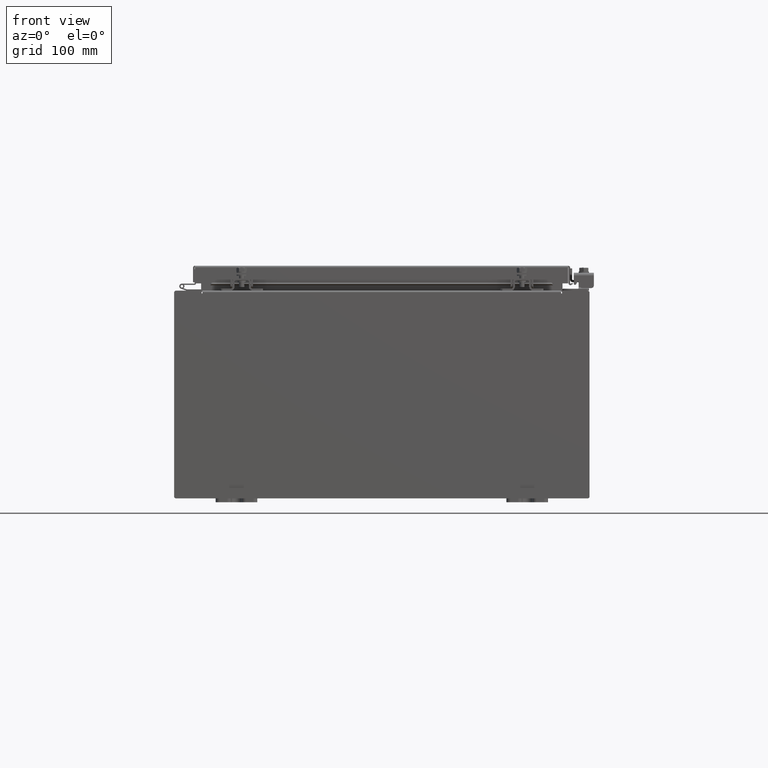
[diagram: clean part render]
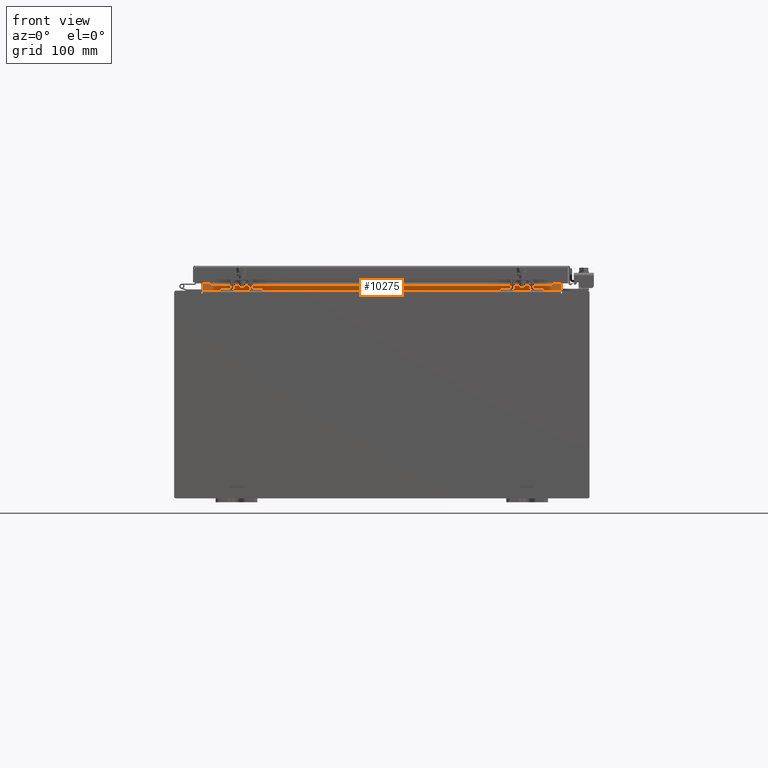
[diagram: same view with one face highlighted and labeled with its STEP entity id]
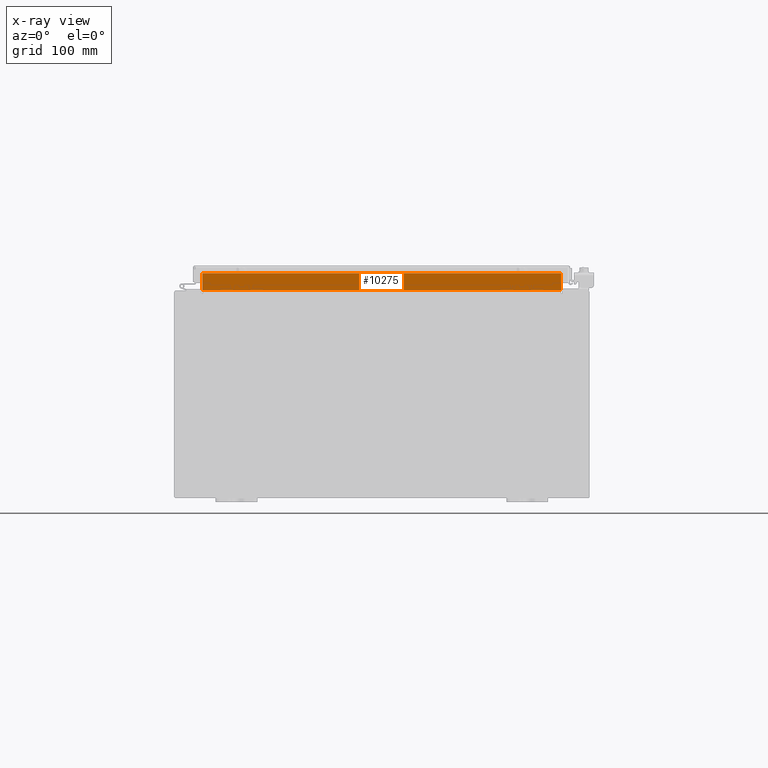
[diagram: x-ray of the same camera — body ghosted, the highlighted face saturated]
A machine part, front view. The second image highlights one B-rep face of the part: STEP entity #10275.
The next image is the same camera in x-ray: the body ghosted, the highlighted face saturated — about 0% of this face is hidden behind the body in this view.
In plain terms, the highlighted planar face has unit normal (0, -1, 0).
Its self-contained STEP definition (entity closure, byte-faithful):
#982 = CARTESIAN_POINT ( 'NONE',  ( 8.637200000000000000, -1.300299999999999800, 5.925300000000004500 ) ) ;
#1188 = VERTEX_POINT ( 'NONE', #32738 ) ;
#1402 = EDGE_CURVE ( 'NONE', #24396, #8806, #10520, .T. ) ;
#2303 = DIRECTION ( 'NONE',  ( -1.000000000000000000, -0.0000000000000000000, -0.0000000000000000000 ) ) ;
#2376 = CARTESIAN_POINT ( 'NONE',  ( 8.637200000000000000, -1.300299999999999800, 5.837600000000004600 ) ) ;
#2963 = LINE ( 'NONE', #982, #32685 ) ;
#6478 = CARTESIAN_POINT ( 'NONE',  ( -8.637200000000000000, -1.300299999999999800, 5.013000000000003500 ) ) ;
#8733 = VECTOR ( 'NONE', #2303, 39.37007874015748100 ) ;
#8806 = VERTEX_POINT ( 'NONE', #23264 ) ;
#9212 = ORIENTED_EDGE ( 'NONE', *, *, #15621, .F. ) ;
#10275 = ADVANCED_FACE ( 'NONE', ( #24716 ), #14031, .T. ) ;
#10520 = LINE ( 'NONE', #12363, #17161 ) ;
#11223 = VERTEX_POINT ( 'NONE', #2376 ) ;
#11774 = DIRECTION ( 'NONE',  ( -0.0000000000000000000, -0.0000000000000000000, -1.000000000000000000 ) ) ;
#11878 = LINE ( 'NONE', #6478, #12273 ) ;
#12250 = EDGE_CURVE ( 'NONE', #1188, #11223, #2963, .T. ) ;
#12273 = VECTOR ( 'NONE', #26690, 39.37007874015748100 ) ;
#12363 = CARTESIAN_POINT ( 'NONE',  ( -8.637200000000000000, -1.300299999999999800, 5.000000000000004400 ) ) ;
#12435 = AXIS2_PLACEMENT_3D ( 'NONE', #25020, #17908, #16225 ) ;
#12838 = CARTESIAN_POINT ( 'NONE',  ( -8.637200000000000000, -1.300299999999999800, 5.837600000000004600 ) ) ;
#13341 = ORIENTED_EDGE ( 'NONE', *, *, #12250, .F. ) ;
#13719 = EDGE_LOOP ( 'NONE', ( #22009, #17981, #13341, #9212 ) ) ;
#14031 = PLANE ( 'NONE',  #12435 ) ;
#14498 = EDGE_CURVE ( 'NONE', #11223, #24396, #19398, .T. ) ;
#15621 = EDGE_CURVE ( 'NONE', #8806, #1188, #11878, .T. ) ;
#16225 = DIRECTION ( 'NONE',  ( 0.0000000000000000000, -0.0000000000000000000, 1.000000000000000000 ) ) ;
#17161 = VECTOR ( 'NONE', #11774, 39.37007874015748100 ) ;
#17908 = DIRECTION ( 'NONE',  ( 0.0000000000000000000, 1.000000000000000000, 0.0000000000000000000 ) ) ;
#17981 = ORIENTED_EDGE ( 'NONE', *, *, #14498, .F. ) ;
#19398 = LINE ( 'NONE', #20768, #8733 ) ;
#20768 = CARTESIAN_POINT ( 'NONE',  ( 8.637200000000000000, -1.300299999999999800, 5.837600000000004600 ) ) ;
#22009 = ORIENTED_EDGE ( 'NONE', *, *, #1402, .F. ) ;
#23264 = CARTESIAN_POINT ( 'NONE',  ( -8.637200000000000000, -1.300299999999999800, 5.013000000000003500 ) ) ;
#24396 = VERTEX_POINT ( 'NONE', #12838 ) ;
#24716 = FACE_OUTER_BOUND ( 'NONE', #13719, .T. ) ;
#25020 = CARTESIAN_POINT ( 'NONE',  ( 0.0000000000000000000, -1.300299999999999800, 0.0000000000000000000 ) ) ;
#26065 = DIRECTION ( 'NONE',  ( -0.0000000000000000000, -0.0000000000000000000, 1.000000000000000000 ) ) ;
#26690 = DIRECTION ( 'NONE',  ( 1.000000000000000000, 0.0000000000000000000, 0.0000000000000000000 ) ) ;
#32685 = VECTOR ( 'NONE', #26065, 39.37007874015748100 ) ;
#32738 = CARTESIAN_POINT ( 'NONE',  ( 8.637199999999996400, -1.300299999999999800, 5.013000000000003500 ) ) ;